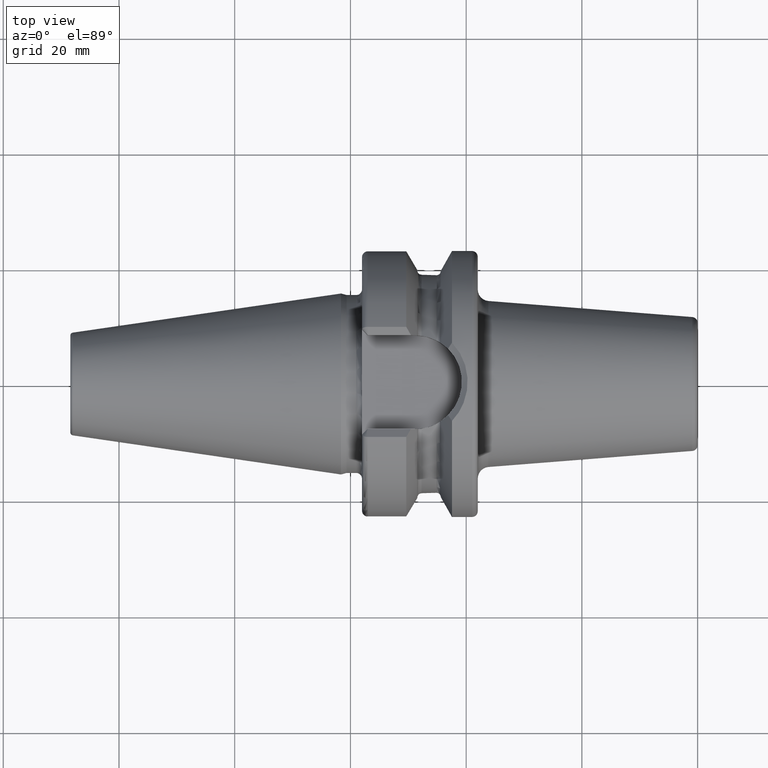
[diagram: clean part render]
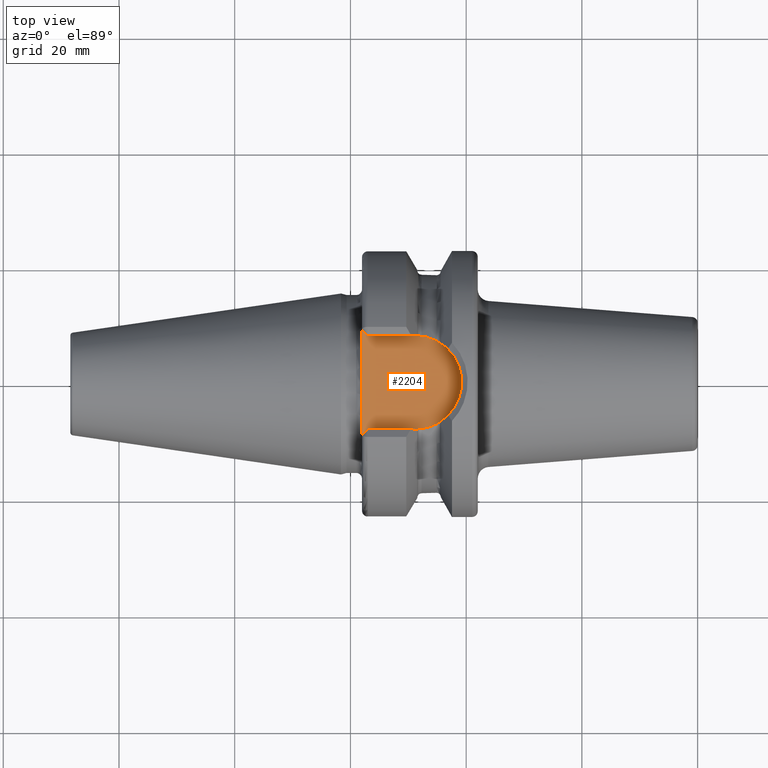
[diagram: same view with one face highlighted and labeled with its STEP entity id]
A machine part, top view. The second image highlights one B-rep face of the part: STEP entity #2204.
In plain terms, the highlighted planar face has unit normal (0, 0, 1).
Its self-contained STEP definition (entity closure, byte-faithful):
#666=DIRECTION('',(1.E0,0.E0,0.E0));
#667=VECTOR('',#666,8.155E0);
#668=CARTESIAN_POINT('',(3.E0,-8.095E0,1.615E1));
#669=LINE('',#668,#667);
#670=DIRECTION('',(0.E0,1.E0,0.E0));
#671=VECTOR('',#670,6.389796680469E0);
#672=CARTESIAN_POINT('',(2.E0,-9.095E0,1.615E1));
#673=LINE('',#672,#671);
#674=DIRECTION('',(0.E0,1.E0,0.E0));
#675=VECTOR('',#674,6.389796680469E0);
#676=CARTESIAN_POINT('',(2.E0,2.705203319531E0,1.615E1));
#677=LINE('',#676,#675);
#678=DIRECTION('',(-1.E0,0.E0,0.E0));
#679=VECTOR('',#678,8.155E0);
#680=CARTESIAN_POINT('',(1.1155E1,8.095E0,1.615E1));
#681=LINE('',#680,#679);
#682=CARTESIAN_POINT('',(1.1155E1,0.E0,1.615E1));
#683=DIRECTION('',(0.E0,0.E0,1.E0));
#684=DIRECTION('',(0.E0,-1.E0,0.E0));
#685=AXIS2_PLACEMENT_3D('',#682,#683,#684);
#691=DIRECTION('',(7.071067811865E-1,7.071067811865E-1,0.E0));
#692=VECTOR('',#691,1.414213562373E0);
#693=CARTESIAN_POINT('',(2.E0,-9.095E0,1.615E1));
#694=LINE('',#693,#692);
#700=CARTESIAN_POINT('',(2.E0,-2.705203319531E0,1.615E1));
#701=CARTESIAN_POINT('',(2.E0,-2.447526606637E0,1.615E1));
#702=CARTESIAN_POINT('',(1.994666808080E0,-1.932209003238E0,1.615E1));
#703=CARTESIAN_POINT('',(1.982373677751E0,-1.159353659083E0,1.615E1));
#704=CARTESIAN_POINT('',(1.974023153496E0,-3.864772813160E-1,1.615E1));
#705=CARTESIAN_POINT('',(1.974022947076E0,3.864455623798E-1,1.615E1));
#706=CARTESIAN_POINT('',(1.982373315251E0,1.159330607264E0,1.615E1));
#707=CARTESIAN_POINT('',(1.994666672292E0,1.932198796230E0,1.615E1));
#708=CARTESIAN_POINT('',(2.E0,2.447523240700E0,1.615E1));
#709=CARTESIAN_POINT('',(2.E0,2.705203319531E0,1.615E1));
#716=DIRECTION('',(-7.071067811865E-1,7.071067811865E-1,0.E0));
#717=VECTOR('',#716,1.414213562373E0);
#718=CARTESIAN_POINT('',(3.E0,8.095E0,1.615E1));
#719=LINE('',#718,#717);
#1276=CARTESIAN_POINT('',(1.1155E1,-8.095E0,1.615E1));
#1277=CARTESIAN_POINT('',(1.1155E1,8.095E0,1.615E1));
#1278=VERTEX_POINT('',#1276);
#1279=VERTEX_POINT('',#1277);
#1280=CARTESIAN_POINT('',(2.E0,2.705203319531E0,1.615E1));
#1281=VERTEX_POINT('',#1280);
#1282=CARTESIAN_POINT('',(2.E0,-2.705203319531E0,1.615E1));
#1283=VERTEX_POINT('',#1282);
#1313=CARTESIAN_POINT('',(3.E0,-8.095E0,1.615E1));
#1315=VERTEX_POINT('',#1313);
#1317=CARTESIAN_POINT('',(2.E0,-9.095E0,1.615E1));
#1319=VERTEX_POINT('',#1317);
#1326=CARTESIAN_POINT('',(2.E0,9.095E0,1.615E1));
#1327=VERTEX_POINT('',#1326);
#1328=CARTESIAN_POINT('',(3.E0,8.095E0,1.615E1));
#1330=VERTEX_POINT('',#1328);
#2186=CARTESIAN_POINT('',(0.E0,0.E0,1.615E1));
#2187=DIRECTION('',(0.E0,0.E0,1.E0));
#2188=DIRECTION('',(1.E0,0.E0,0.E0));
#2189=AXIS2_PLACEMENT_3D('',#2186,#2187,#2188);
#2190=PLANE('',#2189);
#2191=ORIENTED_EDGE('',*,*,#1957,.F.);
#2193=ORIENTED_EDGE('',*,*,#2192,.F.);
#2194=ORIENTED_EDGE('',*,*,#1563,.T.);
#2196=ORIENTED_EDGE('',*,*,#2195,.T.);
#2197=ORIENTED_EDGE('',*,*,#1541,.T.);
#2199=ORIENTED_EDGE('',*,*,#2198,.F.);
#2200=ORIENTED_EDGE('',*,*,#2178,.F.);
#2201=ORIENTED_EDGE('',*,*,#1926,.F.);
#2202=EDGE_LOOP('',(#2191,#2193,#2194,#2196,#2197,#2199,#2200,#2201));
#2203=FACE_OUTER_BOUND('',#2202,.F.);
#2204=ADVANCED_FACE('',(#2203),#2190,.T.);
#686=CIRCLE('',#685,8.095E0);
#710=B_SPLINE_CURVE_WITH_KNOTS('',3,(#700,#701,#702,#703,#704,#705,#706,#707,
#708,#709),.UNSPECIFIED.,.F.,.F.,(4,1,1,1,1,1,1,4),(0.E0,1.428571428571E-1,
2.857142857143E-1,4.285714285714E-1,5.714285714286E-1,7.142857142857E-1,
8.571428571429E-1,1.E0),.UNSPECIFIED.);
#1541=EDGE_CURVE('',#1281,#1327,#677,.T.);
#1563=EDGE_CURVE('',#1319,#1283,#673,.T.);
#1926=EDGE_CURVE('',#1278,#1279,#686,.T.);
#1957=EDGE_CURVE('',#1315,#1278,#669,.T.);
#2178=EDGE_CURVE('',#1279,#1330,#681,.T.);
#2192=EDGE_CURVE('',#1319,#1315,#694,.T.);
#2195=EDGE_CURVE('',#1283,#1281,#710,.T.);
#2198=EDGE_CURVE('',#1330,#1327,#719,.T.);